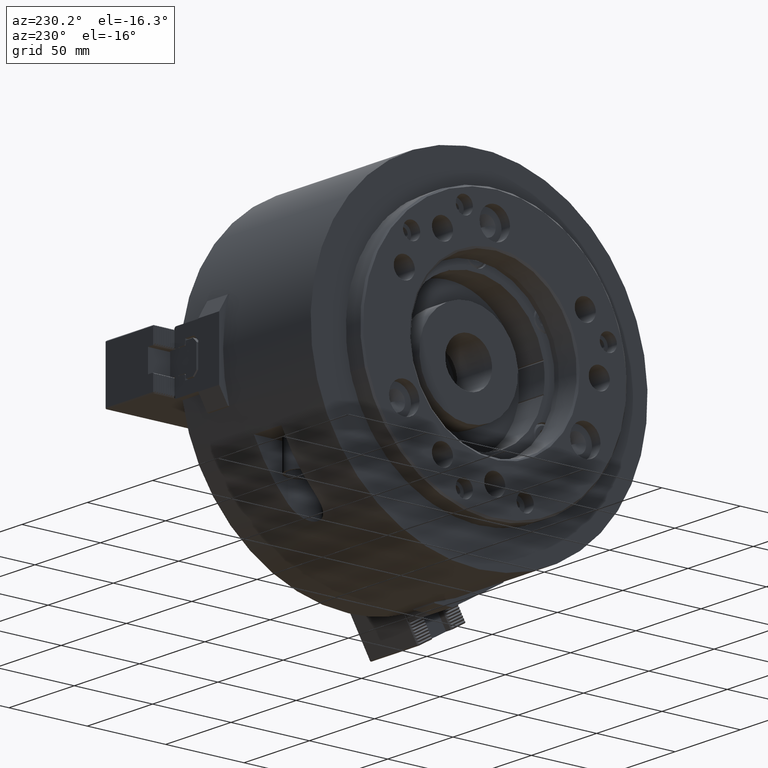
[diagram: clean part render]
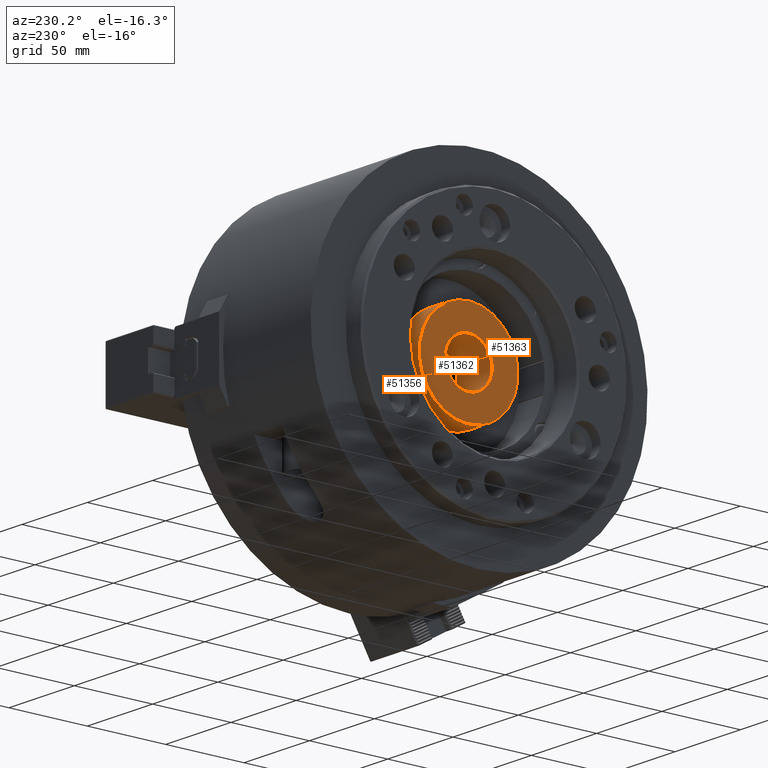
[diagram: same view with one multi-face feature highlighted, each face labeled with its STEP entity id]
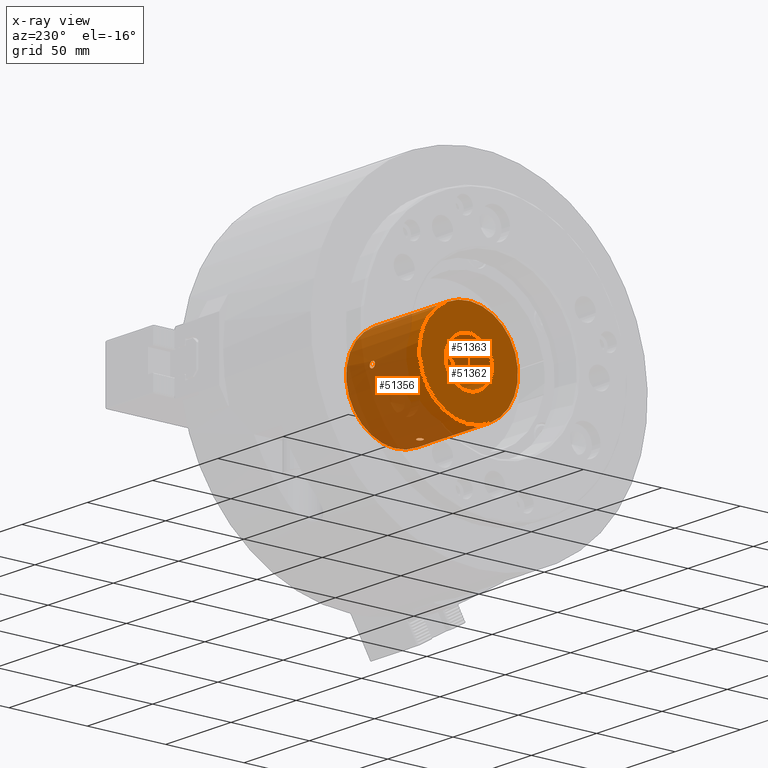
[diagram: x-ray of the same camera — body ghosted, the whole feature saturated]
A machine part, auxiliary view. The highlighted faces form ONE feature: a stepped (counterbored) hole: 2 coaxial cylindrical walls of radii 15 -> 31.5 mm joined by 1 annular planar shoulder face(s). The faces share edges in the B-rep.
The next image is the same camera in x-ray: the body ghosted and the whole hole feature saturated, so the bore chain is visible through the body.
Their STEP definitions:
[1] entity #51356 (Cylinder):
#66=B_SPLINE_CURVE_WITH_KNOTS('',3,(#74974,#74975,#74976,#74977,#74978,
#74979,#74980,#74981,#74982,#74983,#74984),.UNSPECIFIED.,.T.,.F.,(1,1,1,
1,1,1,1,1,1,1,1,1,1,1,1),(-0.00458905519322177,-0.00305937012881451,-0.00152968506440725,
0.,0.00152968506440726,0.00305937012881451,0.00458905519322177,0.00611874025762902,
0.00764842532203628,0.00917811038644353,0.0107077954508508,0.012237480515258,
0.0137671655796653,0.0152968506440726,0.0168265357084798),.UNSPECIFIED.);
#67=B_SPLINE_CURVE_WITH_KNOTS('',3,(#74988,#74989,#74990,#74991,#74992,
#74993,#74994,#74995,#74996,#74997,#74998),.UNSPECIFIED.,.T.,.F.,(1,1,1,
1,1,1,1,1,1,1,1,1,1,1,1),(-0.00458905519322178,-0.00305937012881452,-0.00152968506440726,
0.,0.00152968506440726,0.00305937012881452,0.00458905519322178,0.00611874025762905,
0.00764842532203631,0.00917811038644357,0.0107077954508508,0.0122374805152581,
0.0137671655796654,0.0152968506440726,0.0168265357084799),.UNSPECIFIED.);
#68=B_SPLINE_CURVE_WITH_KNOTS('',3,(#75002,#75003,#75004,#75005,#75006,
#75007,#75008,#75009,#75010,#75011,#75012),.UNSPECIFIED.,.T.,.F.,(1,1,1,
1,1,1,1,1,1,1,1,1,1,1,1),(-0.00458905519322177,-0.00305937012881451,-0.00152968506440726,
0.,0.00152968506440726,0.00305937012881451,0.00458905519322177,0.00611874025762903,
0.00764842532203628,0.00917811038644354,0.0107077954508508,0.0122374805152581,
0.0137671655796653,0.0152968506440726,0.0168265357084798),.UNSPECIFIED.);
#69=B_SPLINE_CURVE_WITH_KNOTS('',3,(#75014,#75015,#75016,#75017,#75018,
#75019,#75020,#75021,#75022,#75023,#75024),.UNSPECIFIED.,.T.,.F.,(1,1,1,
1,1,1,1,1,1,1,1,1,1,1,1),(-0.00458905519322177,-0.00305937012881451,-0.00152968506440726,
0.,0.00152968506440726,0.00305937012881451,0.00458905519322177,0.00611874025762903,
0.00764842532203628,0.00917811038644354,0.0107077954508508,0.0122374805152581,
0.0137671655796653,0.0152968506440726,0.0168265357084798),.UNSPECIFIED.);
#15637=CYLINDRICAL_SURFACE('',#54968,31.5);
#18931=ORIENTED_EDGE('',*,*,#32140,.T.);
#18932=ORIENTED_EDGE('',*,*,#32141,.T.);
#18933=ORIENTED_EDGE('',*,*,#32142,.F.);
#18934=ORIENTED_EDGE('',*,*,#32143,.F.);
#18935=ORIENTED_EDGE('',*,*,#32144,.F.);
#18936=ORIENTED_EDGE('',*,*,#32145,.T.);
#32140=EDGE_CURVE('',#43244,#43244,#66,.T.);
#32141=EDGE_CURVE('',#43245,#43245,#38340,.T.);
#32142=EDGE_CURVE('',#43246,#43246,#67,.T.);
#32143=EDGE_CURVE('',#43247,#43247,#38341,.T.);
#32144=EDGE_CURVE('',#43248,#43248,#68,.T.);
#32145=EDGE_CURVE('',#43249,#43249,#69,.T.);
#38340=CIRCLE('',#54969,31.5);
#38341=CIRCLE('',#54970,31.5);
#39667=EDGE_LOOP('',(#18931));
#39668=EDGE_LOOP('',(#18932));
#39669=EDGE_LOOP('',(#18933));
#39670=EDGE_LOOP('',(#18934));
#39671=EDGE_LOOP('',(#18935));
#39672=EDGE_LOOP('',(#18936));
#43244=VERTEX_POINT('',#74985);
#43245=VERTEX_POINT('',#74987);
#43246=VERTEX_POINT('',#74999);
#43247=VERTEX_POINT('',#75001);
#43248=VERTEX_POINT('',#75013);
#43249=VERTEX_POINT('',#75025);
#48117=FACE_BOUND('',#39667,.T.);
#48118=FACE_BOUND('',#39668,.T.);
#48119=FACE_BOUND('',#39669,.T.);
#48120=FACE_BOUND('',#39670,.T.);
#48121=FACE_BOUND('',#39671,.T.);
#48122=FACE_BOUND('',#39672,.T.);
#51356=ADVANCED_FACE('',(#48117,#48118,#48119,#48120,#48121,#48122),#15637,
 .T.);
#54968=AXIS2_PLACEMENT_3D('',#74973,#60891,#60892);
#54969=AXIS2_PLACEMENT_3D('',#74986,#60893,#60894);
#54970=AXIS2_PLACEMENT_3D('',#75000,#60895,#60896);
#60891=DIRECTION('',(1.,0.,0.));
#60892=DIRECTION('',(0.,0.0321367261490596,-0.999483482020799));
#60893=DIRECTION('',(1.,0.,0.));
#60894=DIRECTION('',(0.,0.0321367261490596,-0.999483482020799));
#60895=DIRECTION('',(1.,0.,0.));
#60896=DIRECTION('',(0.,0.0321367261490596,-0.999483482020799));
#74973=CARTESIAN_POINT('',(-19.838042042042,0.,0.));
#74974=CARTESIAN_POINT('',(-57.3607242551932,31.3916591382359,2.66750949868474));
#74975=CARTESIAN_POINT('',(-58.2198367986873,31.4905129895449,1.23940045304915));
#74976=CARTESIAN_POINT('',(-57.6930121776508,31.5062491564961,-0.350813181941504));
#74977=CARTESIAN_POINT('',(-56.2156395061857,31.4804561909239,-1.07101973723534));
#74978=CARTESIAN_POINT('',(-54.636833807458,31.4982076821586,-0.643376516065252));
#74979=CARTESIAN_POINT('',(-53.7815134197498,31.5050753219388,0.784699841461822));
#74980=CARTESIAN_POINT('',(-54.3046547304789,31.4188005667538,2.37212941449988));
#74981=CARTESIAN_POINT('',(-55.7841739683555,31.3466396657479,3.09096861263809));
#74982=CARTESIAN_POINT('',(-57.3607242551932,31.3916591382359,2.66750949868474));
#74983=CARTESIAN_POINT('',(-58.2198367986873,31.4905129895449,1.23940045304915));
#74984=CARTESIAN_POINT('',(-57.6930121776508,31.5062491564961,-0.350813181941504));
#74985=CARTESIAN_POINT('',(-57.9888472712655,31.4766600421519,1.21238302148997));
#74986=CARTESIAN_POINT('',(-92.,0.,0.));
#74987=CARTESIAN_POINT('',(-92.,1.01230687369538,-31.4837296836552));
#74988=CARTESIAN_POINT('',(-57.3607242551932,-31.4981799503695,0.645391502034701));
#74989=CARTESIAN_POINT('',(-58.2198367986873,-31.5050875275643,-0.786118126127872));
#74990=CARTESIAN_POINT('',(-57.6930121776508,-31.4186354631854,-2.3740580092548));
#74991=CARTESIAN_POINT('',(-56.2156395061857,-31.3466295219967,-3.09112000364212));
#74992=CARTESIAN_POINT('',(-54.636833807458,-31.3918162559541,-2.66550045624323));
#74993=CARTESIAN_POINT('',(-53.7815134197498,-31.4904096981635,-1.24081502410135));
#74994=CARTESIAN_POINT('',(-54.3046547304789,-31.5062900256201,0.348877964477862));
#74995=CARTESIAN_POINT('',(-55.7841739683555,-31.4804565883263,1.07086800729806));
#74996=CARTESIAN_POINT('',(-57.3607242551932,-31.4981799503695,0.645391502034701));
#74997=CARTESIAN_POINT('',(-58.2198367986873,-31.5050875275643,-0.786118126127872));
#74998=CARTESIAN_POINT('',(-57.6930121776508,-31.4186354631854,-2.3740580092548));
#74999=CARTESIAN_POINT('',(-57.9888472712655,-31.489527587302,-0.812189835288597));
#75000=CARTESIAN_POINT('',(-36.,0.,0.));
#75001=CARTESIAN_POINT('',(-36.,1.01230687369538,-31.4837296836552));
#75002=CARTESIAN_POINT('',(-57.3607242551932,-0.64539150203457,-31.4981799503695));
#75003=CARTESIAN_POINT('',(-58.2198367986873,0.78611812612798,-31.5050875275643));
#75004=CARTESIAN_POINT('',(-57.6930121776508,2.37405800925491,-31.4186354631854));
#75005=CARTESIAN_POINT('',(-56.2156395061857,3.09112000364223,-31.3466295219967));
#75006=CARTESIAN_POINT('',(-54.636833807458,2.66550045624336,-31.3918162559541));
#75007=CARTESIAN_POINT('',(-53.7815134197498,1.24081502410147,-31.4904096981635));
#75008=CARTESIAN_POINT('',(-54.3046547304789,-0.348877964477725,-31.5062900256201));
#75009=CARTESIAN_POINT('',(-55.7841739683555,-1.07086800729795,-31.4804565883263));
#75010=CARTESIAN_POINT('',(-57.3607242551932,-0.64539150203457,-31.4981799503695));
#75011=CARTESIAN_POINT('',(-58.2198367986873,0.78611812612798,-31.5050875275643));
#75012=CARTESIAN_POINT('',(-57.6930121776508,2.37405800925491,-31.4186354631854));
#75013=CARTESIAN_POINT('',(-57.9888472712655,0.81218983528871,-31.489527587302));
#75014=CARTESIAN_POINT('',(-57.3607242551932,-2.66750949868486,31.3916591382359));
#75015=CARTESIAN_POINT('',(-58.2198367986873,-1.23940045304926,31.4905129895449));
#75016=CARTESIAN_POINT('',(-57.6930121776508,0.350813181941394,31.5062491564961));
#75017=CARTESIAN_POINT('',(-56.2156395061857,1.07101973723522,31.4804561909239));
#75018=CARTESIAN_POINT('',(-54.636833807458,0.643376516065159,31.4982076821586));
#75019=CARTESIAN_POINT('',(-53.7815134197498,-0.784699841461944,31.5050753219387));
#75020=CARTESIAN_POINT('',(-54.3046547304789,-2.3721294145,31.4188005667538));
#75021=CARTESIAN_POINT('',(-55.7841739683555,-3.09096861263819,31.3466396657478));
#75022=CARTESIAN_POINT('',(-57.3607242551932,-2.66750949868486,31.3916591382359));
#75023=CARTESIAN_POINT('',(-58.2198367986873,-1.23940045304926,31.4905129895449));
#75024=CARTESIAN_POINT('',(-57.6930121776508,0.350813181941394,31.5062491564961));
#75025=CARTESIAN_POINT('',(-57.9888472712655,-1.21238302149008,31.4766600421519));
[2] entity #51363 (Cylinder):
#15640=CYLINDRICAL_SURFACE('',#54988,15.);
#18963=ORIENTED_EDGE('',*,*,#32165,.T.);
#18964=ORIENTED_EDGE('',*,*,#32164,.F.);
#32164=EDGE_CURVE('',#43266,#43266,#38352,.T.);
#32165=EDGE_CURVE('',#43267,#43267,#38353,.T.);
#38352=CIRCLE('',#54987,15.);
#38353=CIRCLE('',#54989,15.);
#39685=EDGE_LOOP('',(#18963));
#39686=EDGE_LOOP('',(#18964));
#43266=VERTEX_POINT('',#75067);
#43267=VERTEX_POINT('',#75070);
#48135=FACE_BOUND('',#39685,.T.);
#48136=FACE_BOUND('',#39686,.T.);
#51363=ADVANCED_FACE('',(#48135,#48136),#15640,.F.);
#54987=AXIS2_PLACEMENT_3D('',#75066,#60937,#60938);
#54988=AXIS2_PLACEMENT_3D('',#75068,#60939,#60940);
#54989=AXIS2_PLACEMENT_3D('',#75069,#60941,#60942);
#60937=DIRECTION('',(1.,0.,0.));
#60938=DIRECTION('',(0.,0.0321367261490596,-0.999483482020799));
#60939=DIRECTION('',(1.,0.,0.));
#60940=DIRECTION('',(0.,0.0321367261490596,-0.999483482020799));
#60941=DIRECTION('',(1.,0.,0.));
#60942=DIRECTION('',(0.,0.0321367261490596,-0.999483482020799));
#75066=CARTESIAN_POINT('',(-92.,0.,0.));
#75067=CARTESIAN_POINT('',(-92.,0.482050892235894,-14.992252230312));
#75068=CARTESIAN_POINT('',(-19.838042042042,0.,0.));
#75069=CARTESIAN_POINT('',(-65.,0.,0.));
#75070=CARTESIAN_POINT('',(-65.,0.482050892235894,-14.992252230312));
[3] entity #51362 (Plane):
#13540=PLANE('',#54986);
#18961=ORIENTED_EDGE('',*,*,#32164,.T.);
#18962=ORIENTED_EDGE('',*,*,#32141,.F.);
#32141=EDGE_CURVE('',#43245,#43245,#38340,.T.);
#32164=EDGE_CURVE('',#43266,#43266,#38352,.T.);
#38340=CIRCLE('',#54969,31.5);
#38352=CIRCLE('',#54987,15.);
#39683=EDGE_LOOP('',(#18961));
#39684=EDGE_LOOP('',(#18962));
#43245=VERTEX_POINT('',#74987);
#43266=VERTEX_POINT('',#75067);
#48133=FACE_BOUND('',#39683,.T.);
#48134=FACE_BOUND('',#39684,.T.);
#51362=ADVANCED_FACE('',(#48133,#48134),#13540,.T.);
#54969=AXIS2_PLACEMENT_3D('',#74986,#60893,#60894);
#54986=AXIS2_PLACEMENT_3D('',#75065,#60935,#60936);
#54987=AXIS2_PLACEMENT_3D('',#75066,#60937,#60938);
#60893=DIRECTION('',(1.,0.,0.));
#60894=DIRECTION('',(0.,0.0321367261490596,-0.999483482020799));
#60935=DIRECTION('',(-1.,0.,0.));
#60936=DIRECTION('',(0.,-0.0321367261490596,0.999483482020799));
#60937=DIRECTION('',(1.,0.,0.));
#60938=DIRECTION('',(0.,0.0321367261490596,-0.999483482020799));
#74986=CARTESIAN_POINT('',(-92.,0.,0.));
#74987=CARTESIAN_POINT('',(-92.,1.01230687369538,-31.4837296836552));
#75065=CARTESIAN_POINT('',(-92.,22.9781678113885,-21.5465497013251));
#75066=CARTESIAN_POINT('',(-92.,0.,0.));
#75067=CARTESIAN_POINT('',(-92.,0.482050892235894,-14.992252230312));